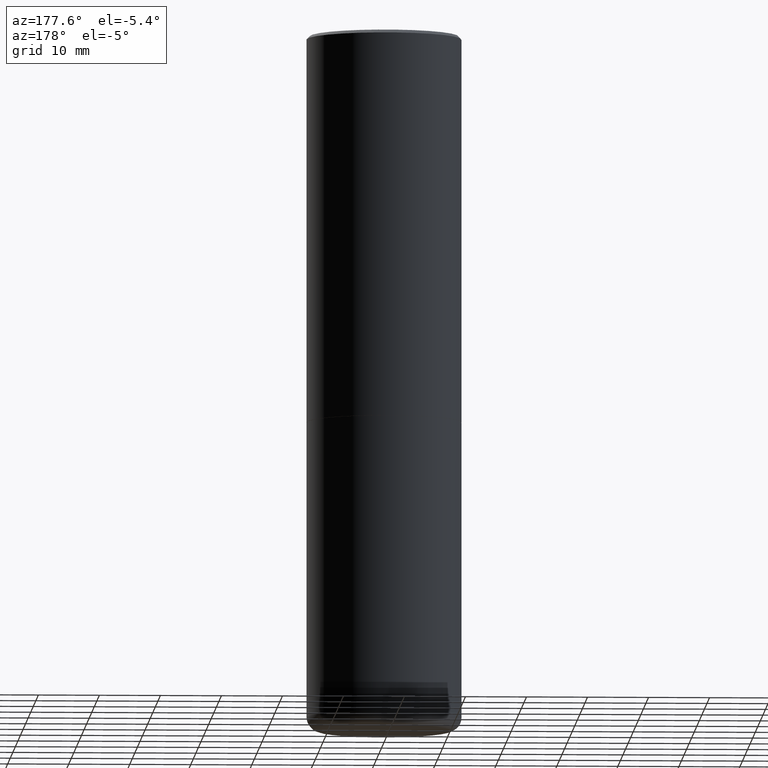
[diagram: clean part render]
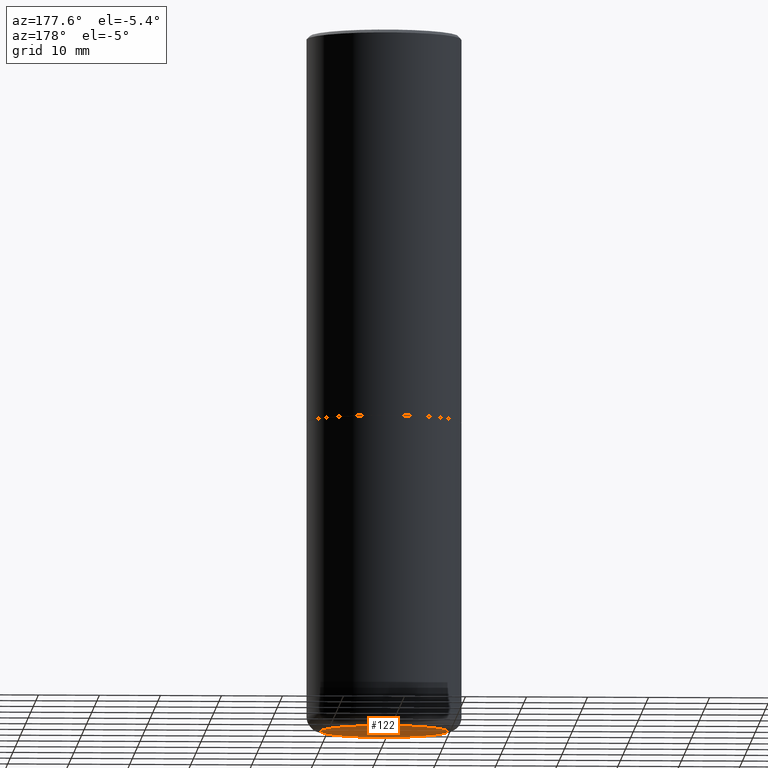
[diagram: same view with one face highlighted and labeled with its STEP entity id]
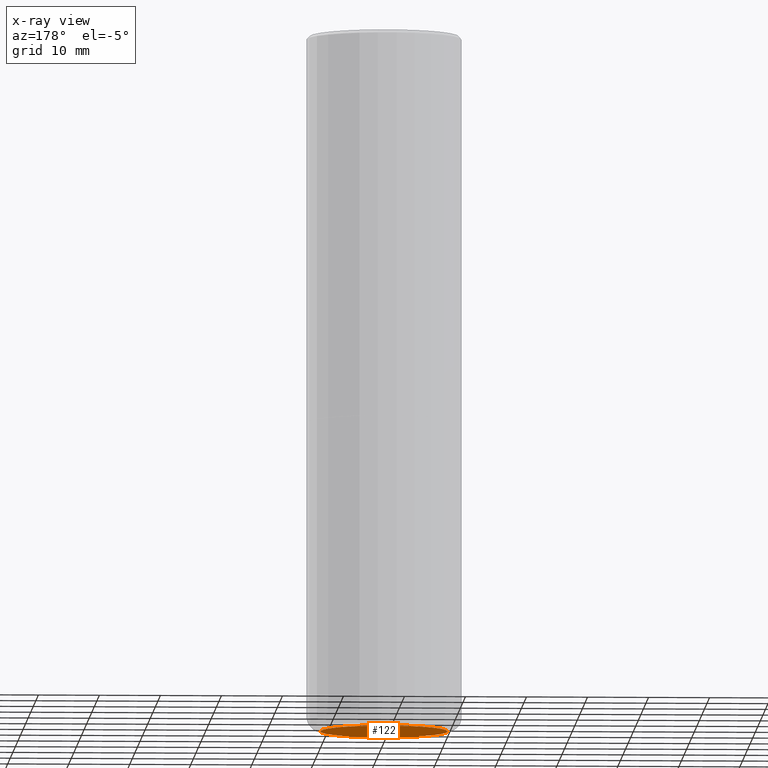
[diagram: x-ray of the same camera — body ghosted, the highlighted face saturated]
A machine part, auxiliary view. The second image highlights one B-rep face of the part: STEP entity #122.
The next image is the same camera in x-ray: the body ghosted, the highlighted face saturated — about 0% of this face is hidden behind the body in this view.
In plain terms, the highlighted planar face has unit normal (0, -0, -1).
Its self-contained STEP definition (entity closure, byte-faithful):
#12 = CARTESIAN_POINT ( 'NONE',  ( 0.4099999999999999756, -1.857468072264552372E-14, -4.500000000000000000 ) ) ;
#30 = CIRCLE ( 'NONE', #342, 0.4099999999999999756 ) ;
#46 = ORIENTED_EDGE ( 'NONE', *, *, #344, .F. ) ;
#104 = PLANE ( 'NONE',  #164 ) ;
#122 = ADVANCED_FACE ( 'NONE', ( #378 ), #104, .T. ) ;
#127 = CIRCLE ( 'NONE', #227, 0.4099999999999999756 ) ;
#130 = EDGE_LOOP ( 'NONE', ( #46, #292 ) ) ;
#160 = EDGE_CURVE ( 'NONE', #352, #406, #30, .T. ) ;
#163 = CARTESIAN_POINT ( 'NONE',  ( 1.100460962783311469E-28, -1.571166602479415690E-14, -4.500000000000000000 ) ) ;
#164 = AXIS2_PLACEMENT_3D ( 'NONE', #163, #165, #199 ) ;
#165 = DIRECTION ( 'NONE',  ( 2.438088387897960049E-29, -3.491481338843145188E-15, -1.000000000000000000 ) ) ;
#169 = DIRECTION ( 'NONE',  ( 1.000000000000000000, -6.982962677686266711E-15, 0.000000000000000000 ) ) ;
#181 = CARTESIAN_POINT ( 'NONE',  ( -0.4099999999999999756, -1.232157991683776049E-14, -4.500000000000000000 ) ) ;
#199 = DIRECTION ( 'NONE',  ( -1.000000000000000000, 6.982962677686265922E-15, -4.876176775795935793E-29 ) ) ;
#227 = AXIS2_PLACEMENT_3D ( 'NONE', #243, #405, #341 ) ;
#243 = CARTESIAN_POINT ( 'NONE',  ( 1.100460962783311469E-28, -1.571166602479415690E-14, -4.500000000000000000 ) ) ;
#292 = ORIENTED_EDGE ( 'NONE', *, *, #160, .F. ) ;
#341 = DIRECTION ( 'NONE',  ( 1.000000000000000000, -6.982962677686266711E-15, 0.000000000000000000 ) ) ;
#342 = AXIS2_PLACEMENT_3D ( 'NONE', #392, #351, #169 ) ;
#344 = EDGE_CURVE ( 'NONE', #406, #352, #127, .T. ) ;
#351 = DIRECTION ( 'NONE',  ( -2.445468806185136597E-29, 3.491481338843145583E-15, 1.000000000000000000 ) ) ;
#352 = VERTEX_POINT ( 'NONE', #181 ) ;
#378 = FACE_OUTER_BOUND ( 'NONE', #130, .T. ) ;
#392 = CARTESIAN_POINT ( 'NONE',  ( 1.100460962783311469E-28, -1.571166602479415690E-14, -4.500000000000000000 ) ) ;
#405 = DIRECTION ( 'NONE',  ( -2.445468806185136597E-29, 3.491481338843145583E-15, 1.000000000000000000 ) ) ;
#406 = VERTEX_POINT ( 'NONE', #12 ) ;